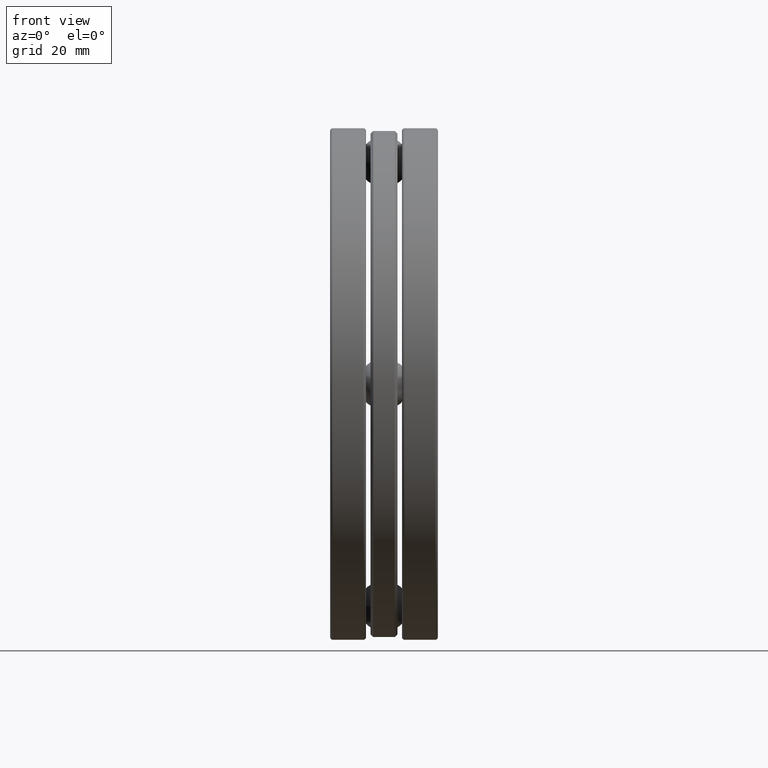
[diagram: clean part render]
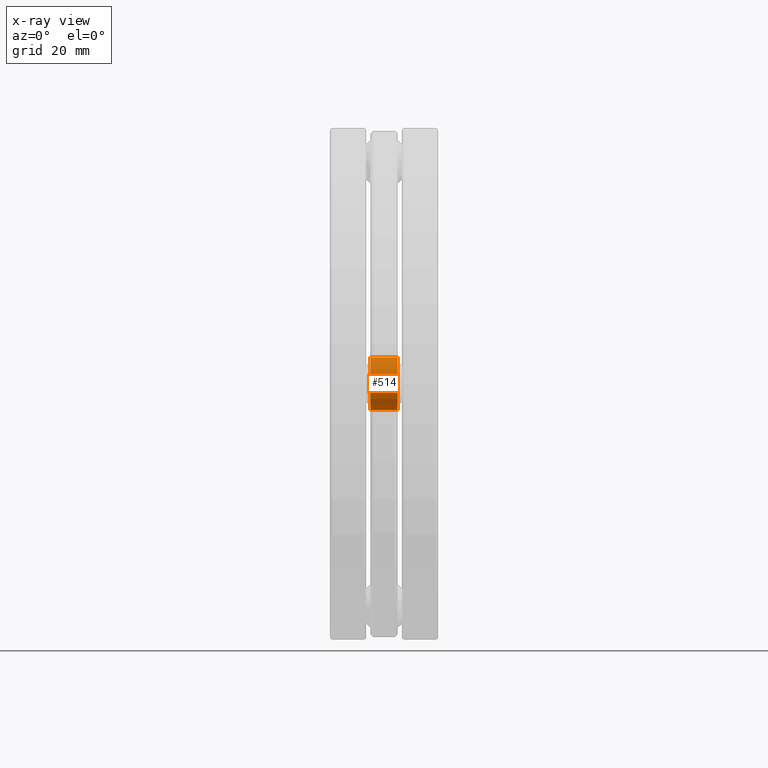
[diagram: x-ray — body ghosted, one internal face saturated and labeled with its STEP entity id]
A machine part, front view, then the same camera in x-ray: the body is ghosted and one INTERNAL B-rep face — a face not visible from any outside direction — is saturated and labeled: STEP entity #514.
In plain terms, the highlighted cylindrical surface (bore or boss wall) has radius 4.8895 mm, axis along (1, 0, 0).
Its self-contained STEP definition (entity closure, byte-faithful):
#15 = CARTESIAN_POINT ( 'NONE',  ( 0.09837500000000001800, -1.623999999999999900, 0.1925000000000000000 ) ) ;
#96 = FACE_OUTER_BOUND ( 'NONE', #798, .T. ) ;
#111 = EDGE_CURVE ( 'NONE', #419, #419, #203, .T. ) ;
#170 = CARTESIAN_POINT ( 'NONE',  ( -0.09837499999999997600, -1.623999999999999900, 0.0000000000000000000 ) ) ;
#203 = CIRCLE ( 'NONE', #775, 0.1925000000000000000 ) ;
#228 = DIRECTION ( 'NONE',  ( 0.0000000000000000000, 0.0000000000000000000, 1.000000000000000000 ) ) ;
#239 = ORIENTED_EDGE ( 'NONE', *, *, #532, .T. ) ;
#246 = DIRECTION ( 'NONE',  ( 1.000000000000000000, 0.0000000000000000000, 0.0000000000000000000 ) ) ;
#247 = CYLINDRICAL_SURFACE ( 'NONE', #502, 0.1925000000000000000 ) ;
#272 = CIRCLE ( 'NONE', #449, 0.1925000000000000000 ) ;
#354 = CARTESIAN_POINT ( 'NONE',  ( -0.3935393700787401800, -1.623999999999999900, 0.0000000000000000000 ) ) ;
#360 = FACE_OUTER_BOUND ( 'NONE', #440, .T. ) ;
#419 = VERTEX_POINT ( 'NONE', #15 ) ;
#440 = EDGE_LOOP ( 'NONE', ( #661 ) ) ;
#449 = AXIS2_PLACEMENT_3D ( 'NONE', #170, #623, #492 ) ;
#473 = VERTEX_POINT ( 'NONE', #644 ) ;
#492 = DIRECTION ( 'NONE',  ( 0.0000000000000000000, 0.0000000000000000000, 1.000000000000000000 ) ) ;
#502 = AXIS2_PLACEMENT_3D ( 'NONE', #354, #558, #228 ) ;
#514 = ADVANCED_FACE ( 'NONE', ( #360, #96 ), #247, .F. ) ;
#532 = EDGE_CURVE ( 'NONE', #473, #473, #272, .T. ) ;
#558 = DIRECTION ( 'NONE',  ( 1.000000000000000000, 0.0000000000000000000, 0.0000000000000000000 ) ) ;
#623 = DIRECTION ( 'NONE',  ( -1.000000000000000000, -0.0000000000000000000, -0.0000000000000000000 ) ) ;
#641 = CARTESIAN_POINT ( 'NONE',  ( 0.09837500000000001800, -1.623999999999999900, 0.0000000000000000000 ) ) ;
#644 = CARTESIAN_POINT ( 'NONE',  ( -0.09837499999999997600, -1.623999999999999900, 0.1925000000000000000 ) ) ;
#661 = ORIENTED_EDGE ( 'NONE', *, *, #111, .T. ) ;
#697 = DIRECTION ( 'NONE',  ( 0.0000000000000000000, 0.0000000000000000000, 1.000000000000000000 ) ) ;
#775 = AXIS2_PLACEMENT_3D ( 'NONE', #641, #246, #697 ) ;
#798 = EDGE_LOOP ( 'NONE', ( #239 ) ) ;